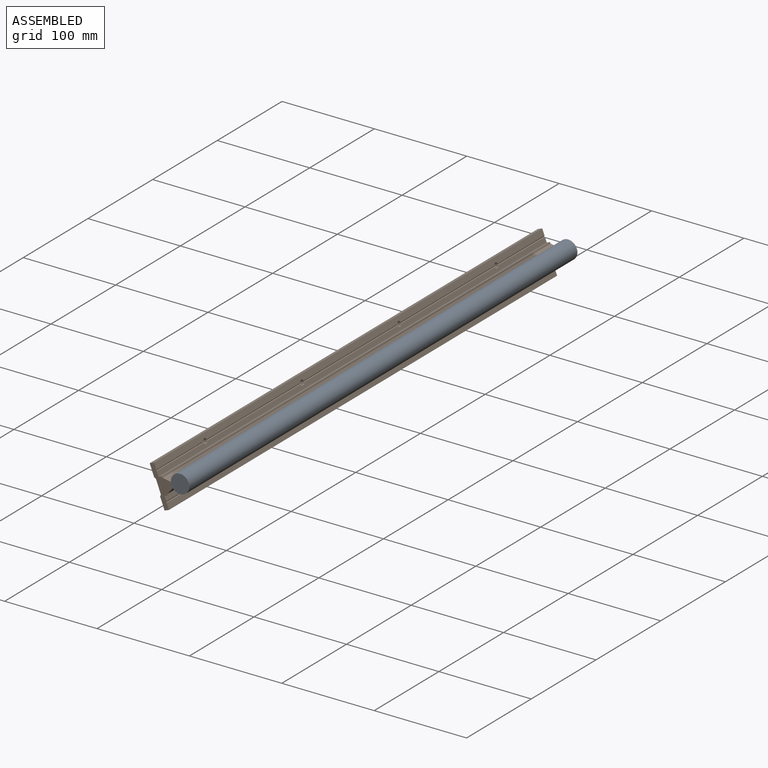
[diagram: assembled view]
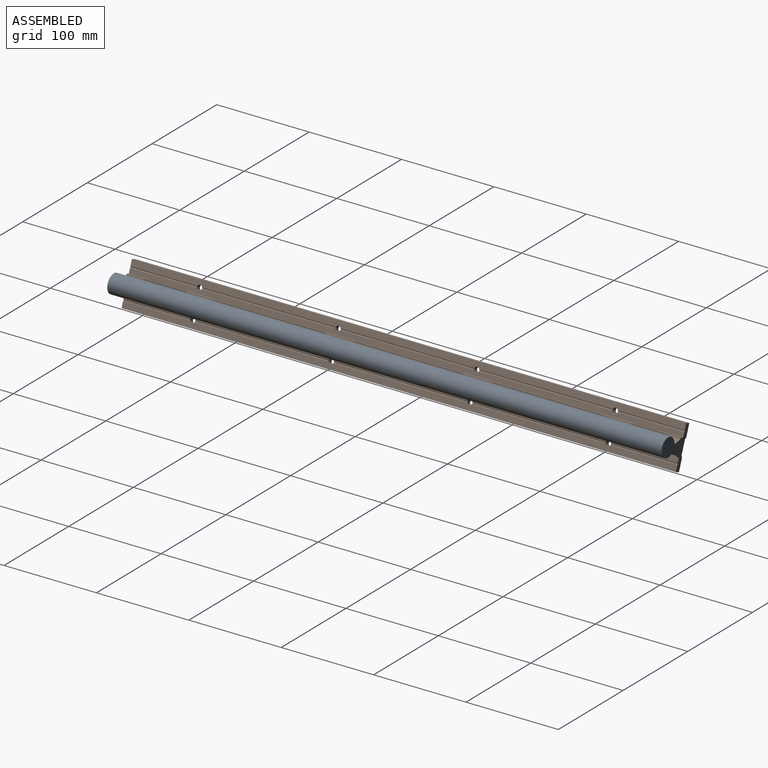
[diagram: assembled view, second angle]
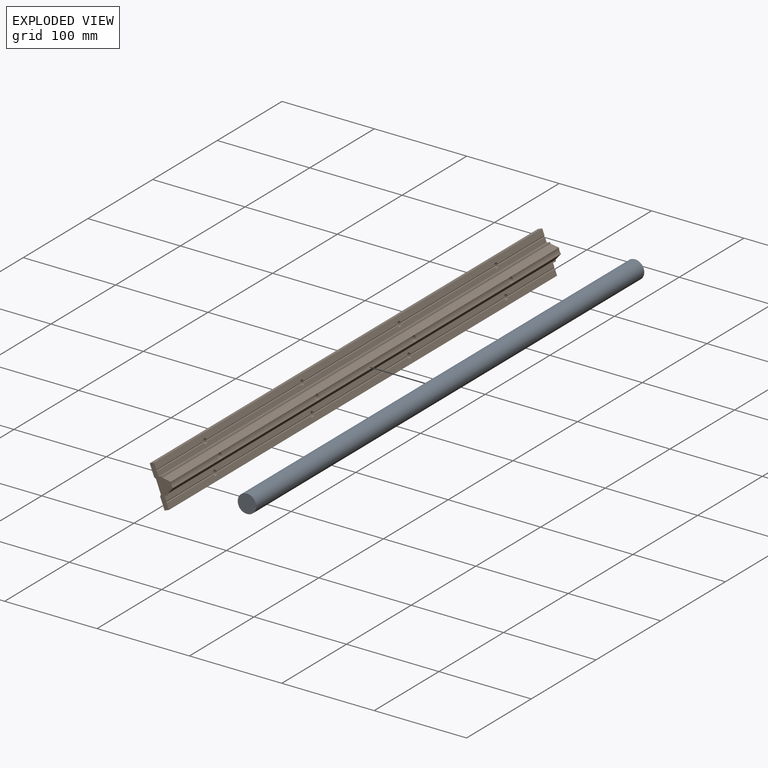
[diagram: exploded view]
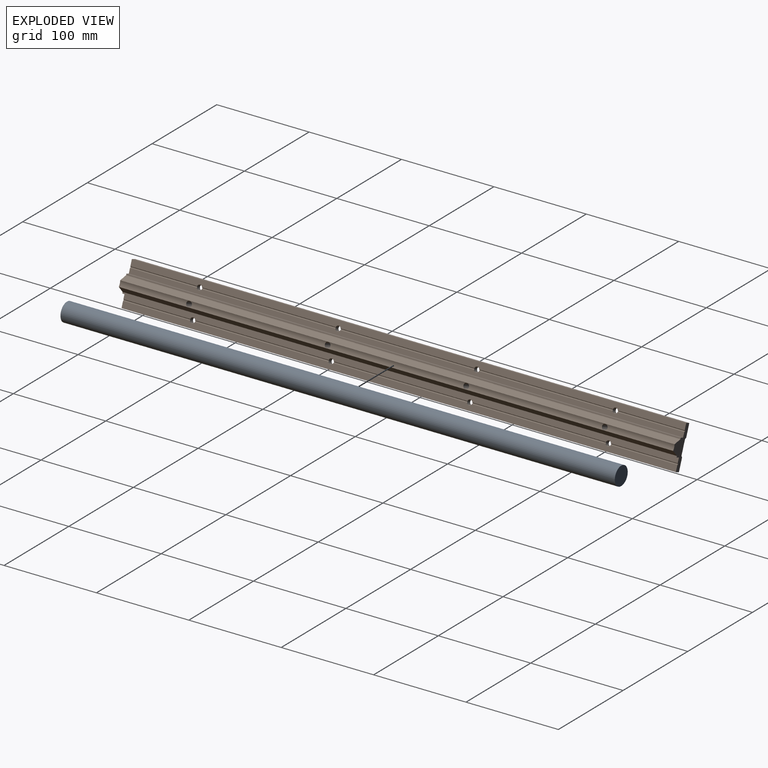
[diagram: exploded view, second angle]
ASSEMBLY  parts=2 mates=3
PART A: 11 faces, bbox 20x600x20 mm
  f0: cylinder r=10mm len=600mm, axis (0,1,0), area 37584.7mm2, adj f1,f2,f3,f5,f7,f9
  f1: plane 20x20mm, normal (0,-1,0), area 314.2mm2, adj f0
  f2: plane 20x20mm, normal (0,1,0), area 314.2mm2, adj f0
  f3: cylinder r=3mm len=10mm, axis (0,0,1), area 184.2mm2, adj f0,f4
  f4: plane 6x6mm, normal (0,0,-1), area 28.3mm2, adj f3
  f5: cylinder r=3mm len=10mm, axis (0,0,1), area 184.2mm2, adj f0,f6
  f6: plane 6x6mm, normal (0,0,-1), area 28.3mm2, adj f5
  f7: cylinder r=3mm len=10mm, axis (0,0,1), area 184.2mm2, adj f0,f8
  f8: plane 6x6mm, normal (0,0,-1), area 28.3mm2, adj f7
  f9: cylinder r=3mm len=10mm, axis (0,0,1), area 184.2mm2, adj f0,f10
  f10: plane 6x6mm, normal (0,0,-1), area 28.3mm2, adj f9
PART B: 50 faces, bbox 45x600x17 mm
  f0: cylinder r=3mm len=9.51mm, axis (0,0,-1), area 175mm2, adj f25,f48
  f1: cylinder r=3mm len=9.51mm, axis (0,0,-1), area 175mm2, adj f25,f46
  f2: cylinder r=3mm len=9.51mm, axis (0,0,-1), area 175mm2, adj f25,f44
  f3: cylinder r=3mm len=9.51mm, axis (0,0,-1), area 175mm2, adj f25,f42
  f4: plane 600x6.7mm, normal (0,0,1), area 3990.6mm2, adj f5,f6,f7,f8,f9,f21,f32,f33
  f5: cylinder r=0.78mm len=144.74mm, axis (0,-1,0), area 284.2mm2, adj f4,f10,f40,f41
  f6: cylinder r=0.78mm len=72.37mm, axis (0,-1,0), area 142.1mm2, adj f4,f10,f32,f41
  f7: cylinder r=0.78mm len=144.74mm, axis (0,-1,0), area 284.2mm2, adj f4,f10,f39,f40
  f8: cylinder r=0.78mm len=144.74mm, axis (0,-1,0), area 284.2mm2, adj f4,f10,f38,f39
  f9: cylinder r=0.78mm len=72.37mm, axis (0,-1,0), area 142.1mm2, adj f4,f10,f33,f38
  f10: plane 600x5.21mm, normal (0,0,1), area 3095.9mm2, adj f5,f6,f7,f8,f9,f22,f32,f33
  f11: cylinder r=0.78mm len=72.37mm, axis (0,-1,0), area 142.1mm2, adj f29,f31,f33,f37
  f12: cylinder r=0.78mm len=144.74mm, axis (0,-1,0), area 284.2mm2, adj f29,f31,f36,f37
  f13: cylinder r=0.78mm len=144.74mm, axis (0,-1,0), area 284.2mm2, adj f29,f31,f35,f36
  f14: cylinder r=0.78mm len=144.74mm, axis (0,-1,0), area 284.2mm2, adj f29,f31,f34,f35
  f15: plane 600x5.11mm, normal (-1,0,0), area 3067.2mm2, adj f16,f31,f32,f33
  f16: plane 600x13.51mm, normal (0,0,-1), area 8010.2mm2, adj f15,f17,f32,f33,f34,f35,f36,f37
  f17: plane 600x1.48mm, normal (0.74,0,-0.68), area 1206.4mm2, adj f16,f18,f32,f33
  f18: plane 600x15.24mm, normal (0,0,-1), area 8828.8mm2, adj f17,f19,f32,f33,f43,f45,f47,f49
  f19: plane 600x1.48mm, normal (-0.74,0,-0.68), area 1206.4mm2, adj f18,f20,f32,f33
  f20: plane 600x13.51mm, normal (0,0,-1), area 8010.2mm2, adj f19,f21,f32,f33,f38,f39,f40,f41
  f21: plane 600x5.11mm, normal (1,0,0), area 3067.2mm2, adj f4,f20,f32,f33
  f22: plane 600x3.89mm, normal (1,0,0), area 2335.3mm2, adj f10,f23,f32,f33
  f23: plane 600x1.43mm, normal (0,0,1), area 857.8mm2, adj f22,f24,f32,f33
  f24: plane 600x8mm, normal (0.87,0,0.5), area 5542.6mm2, adj f23,f25,f32,f33
  f25: cylinder r=10.01mm len=600mm, axis (0,-1,0), area 3591mm2, adj f0,f1,f2,f3,f24,f26,f32,f33
  f26: plane 600x8mm, normal (-0.87,0,0.5), area 5542.6mm2, adj f25,f27,f32,f33
  f27: plane 600x1.43mm, normal (0,0,1), area 857.8mm2, adj f26,f28,f32,f33
  f28: plane 600x3.89mm, normal (-1,0,0), area 2335.3mm2, adj f27,f29,f32,f33
  f29: plane 600x5.21mm, normal (0,0,1), area 3095.9mm2, adj f11,f12,f13,f14,f28,f30,f32,f33
  f30: cylinder r=0.78mm len=72.37mm, axis (0,-1,0), area 142.1mm2, adj f29,f31,f32,f34
  f31: plane 600x6.7mm, normal (0,0,1), area 3990.6mm2, adj f11,f12,f13,f14,f15,f30,f32,f33
  f32: plane 44.98x17mm, normal (0,1,0), area 358.6mm2, adj f4,f6,f10,f15,f16,f17,f18,f19
  f33: plane 44.98x17mm, normal (0,-1,0), area 358.6mm2, adj f4,f9,f10,f11,f15,f16,f17,f18
  f34: cylinder r=2.75mm len=5.5mm, axis (0,0,1), area 87.1mm2, adj f14,f16,f29,f30,f31
  f35: cylinder r=2.75mm len=5.5mm, axis (0,0,1), area 87.1mm2, adj f13,f14,f16,f29,f31
  f36: cylinder r=2.75mm len=5.5mm, axis (0,0,1), area 87.1mm2, adj f12,f13,f16,f29,f31
  f37: cylinder r=2.75mm len=5.5mm, axis (0,0,1), area 87.1mm2, adj f11,f12,f16,f29,f31
  f38: cylinder r=2.75mm len=5.5mm, axis (0,0,1), area 87.1mm2, adj f4,f8,f9,f10,f20
  f39: cylinder r=2.75mm len=5.5mm, axis (0,0,1), area 87.1mm2, adj f4,f7,f8,f10,f20
  f40: cylinder r=2.75mm len=5.5mm, axis (0,0,1), area 87.1mm2, adj f4,f5,f7,f10,f20
  f41: cylinder r=2.75mm len=5.5mm, axis (0,0,1), area 87.1mm2, adj f4,f5,f6,f10,f20
  f42: plane 10x10mm, normal (0,0,-1), area 50.3mm2, adj f3,f43
  f43: cylinder r=5mm len=10mm, axis (0,0,-1), area 188.5mm2, adj f18,f42
  f44: plane 10x10mm, normal (0,0,-1), area 50.3mm2, adj f2,f45
  f45: cylinder r=5mm len=10mm, axis (0,0,-1), area 188.5mm2, adj f18,f44
  f46: plane 10x10mm, normal (0,0,-1), area 50.3mm2, adj f1,f47
  f47: cylinder r=5mm len=10mm, axis (0,0,-1), area 188.5mm2, adj f18,f46
  f48: plane 10x10mm, normal (0,0,-1), area 50.3mm2, adj f0,f49
  f49: cylinder r=5mm len=10mm, axis (0,0,-1), area 188.5mm2, adj f18,f48
PLACE A rot(axis=(-0.57,0,-0.82),180deg) t=(-151.83,-697.61,-179.02)mm fixed
PLACE B rot(axis=(0,1,0),69.1deg) t=(-160.74,-697.61,-182.42)mm
MATE slider A.f9 <-> B.f3  axis (-0.93,0,-0.36) through (-151.83,-622.61,-179.02)mm
MATE planar A.f0 <-> B.f25  axis (0,-1,0) through (-151.83,-397.61,-179.02)mm
MATE fastened A.f0 <-> B.f25  axis (0,-1,0) through (-151.83,-697.61,-179.02)mm
